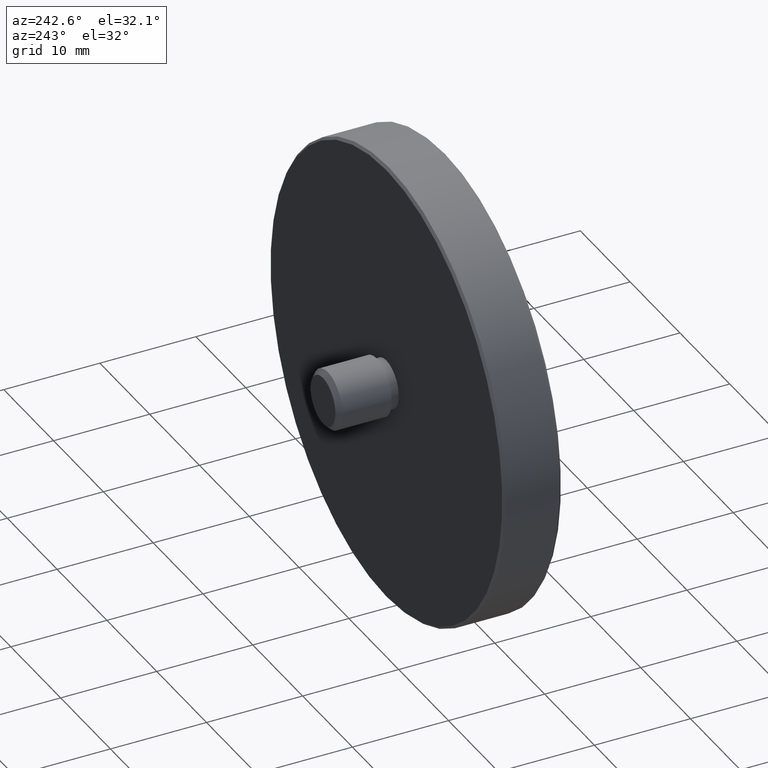
[diagram: clean part render]
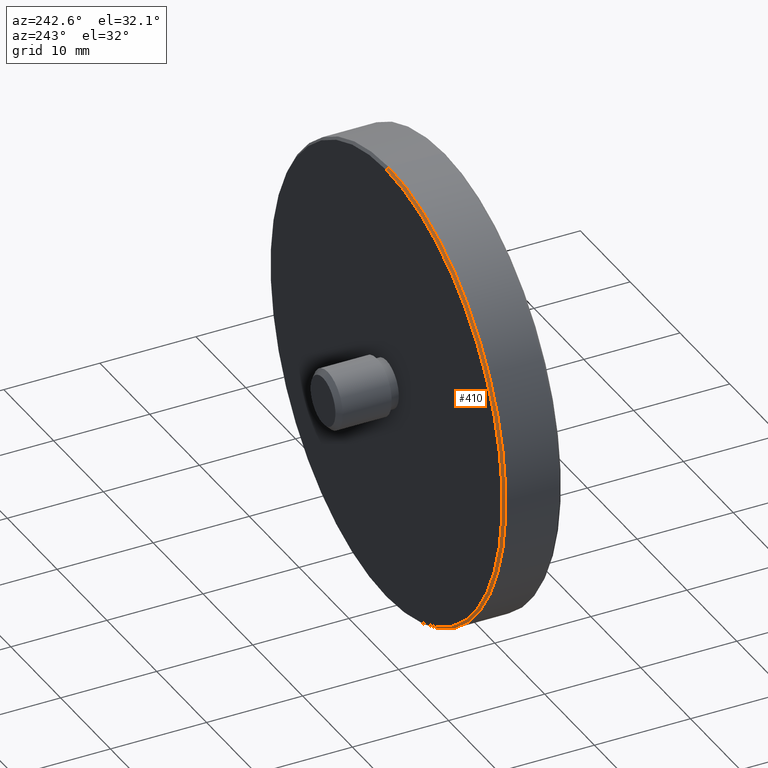
[diagram: same view with one face highlighted and labeled with its STEP entity id]
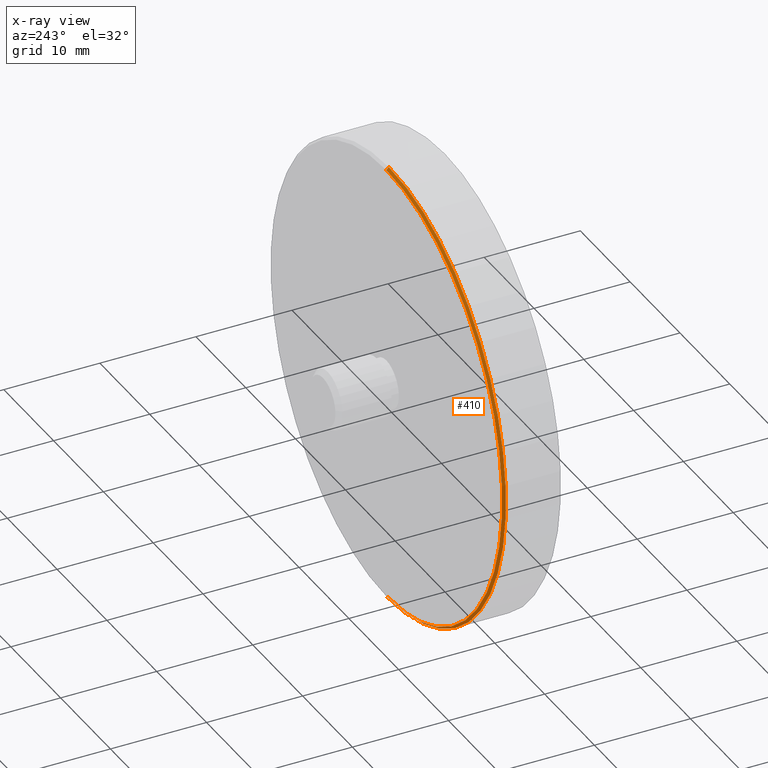
[diagram: x-ray of the same camera — body ghosted, the highlighted face saturated]
A machine part, auxiliary view. The second image highlights one B-rep face of the part: STEP entity #410.
The next image is the same camera in x-ray: the body ghosted, the highlighted face saturated — about 0% of this face is hidden behind the body in this view.
In plain terms, the highlighted conical surface has half-angle 45 deg.
Its self-contained STEP definition (entity closure, byte-faithful):
#28 = CARTESIAN_POINT ( 'NONE',  ( 0.000000000000000000, 6.099999999999999645, 0.000000000000000000 ) ) ;
#42 = LINE ( 'NONE', #307, #170 ) ;
#81 = DIRECTION ( 'NONE',  ( 0.000000000000000000, -1.000000000000000000, 0.000000000000000000 ) ) ;
#85 = AXIS2_PLACEMENT_3D ( 'NONE', #28, #81, #348 ) ;
#108 = CARTESIAN_POINT ( 'NONE',  ( 0.000000000000000000, 6.099999999999999645, -23.24999999999999289 ) ) ;
#114 = AXIS2_PLACEMENT_3D ( 'NONE', #292, #811, #614 ) ;
#116 = DIRECTION ( 'NONE',  ( 8.659560562354874926E-17, -0.7071067811865524577, 0.7071067811865426878 ) ) ;
#119 = VERTEX_POINT ( 'NONE', #217 ) ;
#170 = VECTOR ( 'NONE', #116, 1000.000000000000000 ) ;
#173 = ORIENTED_EDGE ( 'NONE', *, *, #223, .T. ) ;
#217 = CARTESIAN_POINT ( 'NONE',  ( 0.000000000000000000, 6.099999999999999645, -23.24999999999999289 ) ) ;
#218 = DIRECTION ( 'NONE',  ( 0.000000000000000000, -0.7071067811865524577, -0.7071067811865426878 ) ) ;
#223 = EDGE_CURVE ( 'NONE', #119, #629, #765, .T. ) ;
#231 = CARTESIAN_POINT ( 'NONE',  ( 0.000000000000000000, 6.099999999999999645, 0.000000000000000000 ) ) ;
#275 = ORIENTED_EDGE ( 'NONE', *, *, #387, .F. ) ;
#292 = CARTESIAN_POINT ( 'NONE',  ( 0.000000000000000000, 5.849999999999992539, 0.000000000000000000 ) ) ;
#307 = CARTESIAN_POINT ( 'NONE',  ( 2.847303808017595350E-15, 6.099999999999999645, 23.24999999999999289 ) ) ;
#347 = CARTESIAN_POINT ( 'NONE',  ( 2.862611893006937244E-15, 6.099999999999999645, 23.24999999999999289 ) ) ;
#348 = DIRECTION ( 'NONE',  ( 0.000000000000000000, 0.000000000000000000, -1.000000000000000000 ) ) ;
#372 = VECTOR ( 'NONE', #218, 1000.000000000000000 ) ;
#387 = EDGE_CURVE ( 'NONE', #119, #569, #485, .T. ) ;
#395 = EDGE_CURVE ( 'NONE', #668, #629, #538, .T. ) ;
#400 = EDGE_LOOP ( 'NONE', ( #468, #275, #173, #790 ) ) ;
#408 = CARTESIAN_POINT ( 'NONE',  ( 0.000000000000000000, 5.849999999999992539, -23.49999999999999645 ) ) ;
#410 = ADVANCED_FACE ( 'NONE', ( #674 ), #646, .T. ) ;
#468 = ORIENTED_EDGE ( 'NONE', *, *, #502, .F. ) ;
#485 = CIRCLE ( 'NONE', #760, 23.24999999999999289 ) ;
#502 = EDGE_CURVE ( 'NONE', #569, #668, #42, .T. ) ;
#538 = CIRCLE ( 'NONE', #114, 23.49999999999999645 ) ;
#547 = DIRECTION ( 'NONE',  ( 0.000000000000000000, 0.000000000000000000, 1.000000000000000000 ) ) ;
#569 = VERTEX_POINT ( 'NONE', #347 ) ;
#614 = DIRECTION ( 'NONE',  ( 0.000000000000000000, 0.000000000000000000, 1.000000000000000000 ) ) ;
#623 = CARTESIAN_POINT ( 'NONE',  ( 2.877919977996279531E-15, 5.849999999999992539, 23.49999999999999645 ) ) ;
#629 = VERTEX_POINT ( 'NONE', #408 ) ;
#646 = CONICAL_SURFACE ( 'NONE', #85, 23.24999999999999289, 0.7853981633974415066 ) ;
#668 = VERTEX_POINT ( 'NONE', #623 ) ;
#674 = FACE_OUTER_BOUND ( 'NONE', #400, .T. ) ;
#745 = DIRECTION ( 'NONE',  ( 0.000000000000000000, 1.000000000000000000, 0.000000000000000000 ) ) ;
#760 = AXIS2_PLACEMENT_3D ( 'NONE', #231, #745, #547 ) ;
#765 = LINE ( 'NONE', #108, #372 ) ;
#790 = ORIENTED_EDGE ( 'NONE', *, *, #395, .F. ) ;
#811 = DIRECTION ( 'NONE',  ( 0.000000000000000000, -1.000000000000000000, 0.000000000000000000 ) ) ;